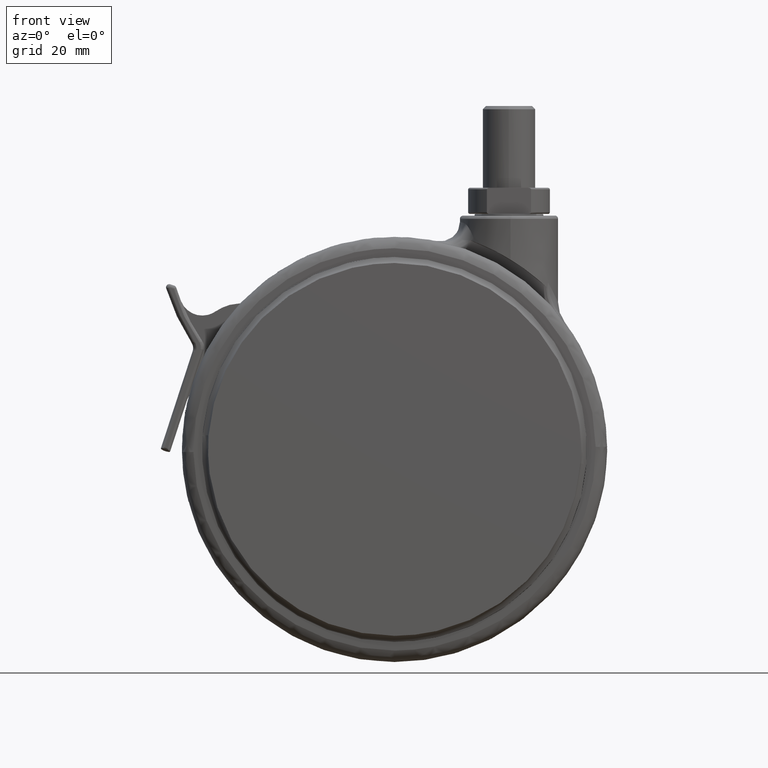
[diagram: clean part render]
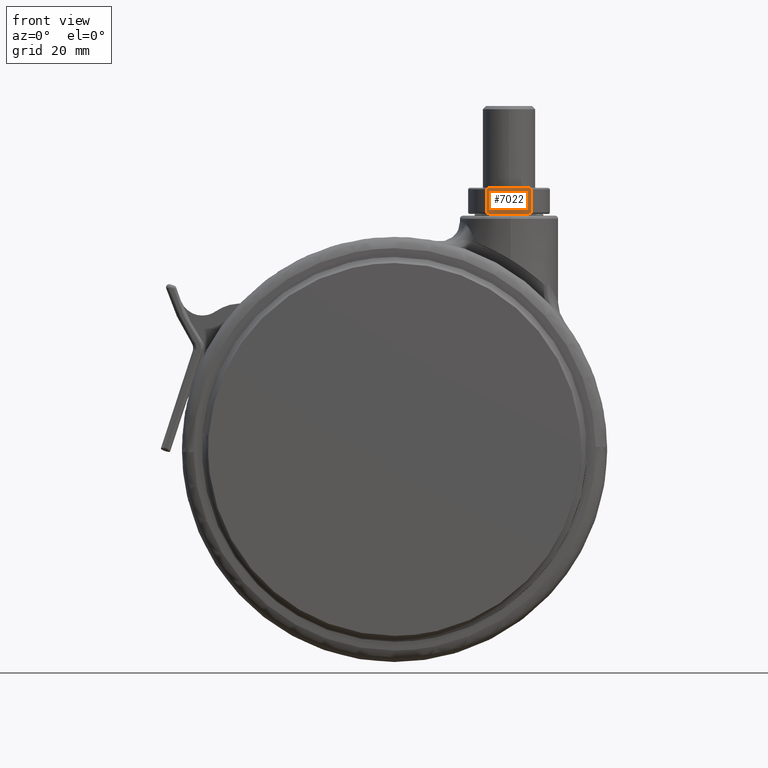
[diagram: same view with one face highlighted and labeled with its STEP entity id]
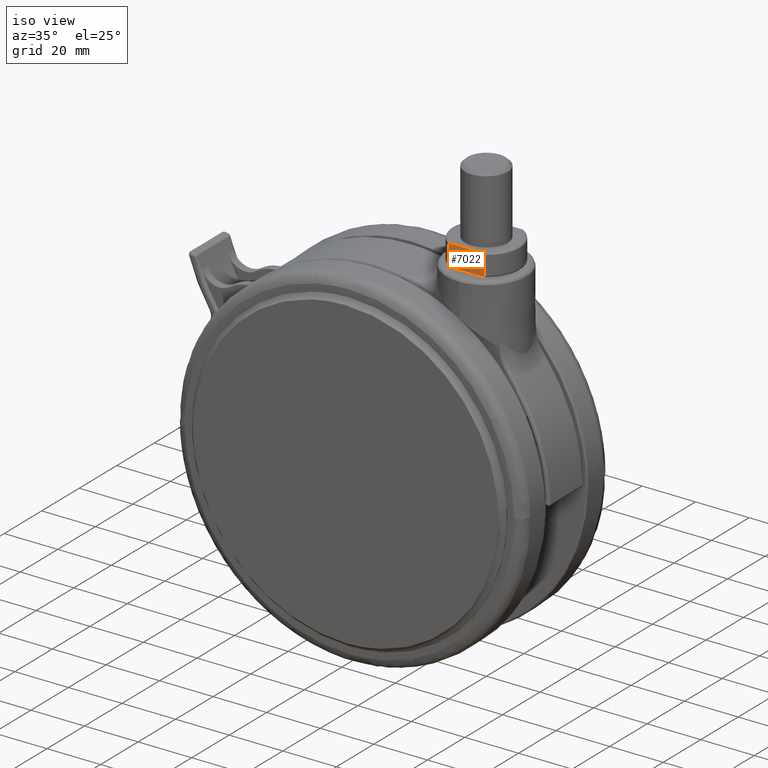
[diagram: same view with one face highlighted and labeled with its STEP entity id]
A machine part, front view. The second image highlights one B-rep face of the part: STEP entity #7022.
A second angle (iso view) of the same face is appended — the face is thin or edge-on in the first view.
In plain terms, the highlighted face is a freeform B-spline surface patch.
Its self-contained STEP definition (entity closure, byte-faithful):
#6467=CARTESIAN_POINT('',(6.782329983125040,-10.500000000000000,8.000000000000449));
#6468=VERTEX_POINT('',#6467);
#6469=CARTESIAN_POINT('',(5.809475019310709,-10.500000000000000,8.500000000000000));
#6470=VERTEX_POINT('',#6469);
#6471=CARTESIAN_POINT('',(6.782329983125040,-10.500000000000000,8.000000000000449));
#6472=CARTESIAN_POINT('',(6.782329983125398,-10.500000000000000,8.025006084478010));
#6473=CARTESIAN_POINT('',(6.778894872954105,-10.500000000000000,8.049620599874512));
#6474=CARTESIAN_POINT('',(6.765532232701906,-10.500000000000000,8.098109558072801));
#6475=CARTESIAN_POINT('',(6.755800013988131,-10.500000000000000,8.121219364959234));
#6476=CARTESIAN_POINT('',(6.731602518106492,-10.500000000000000,8.164995240246698));
#6477=CARTESIAN_POINT('',(6.717086997669903,-10.500000000000000,8.185683152687926));
#6478=CARTESIAN_POINT('',(6.685274213978498,-10.500000000000000,8.223812793039759));
#6479=CARTESIAN_POINT('',(6.667844124028011,-10.500000000000000,8.241488407830167));
#6480=CARTESIAN_POINT('',(6.630539739280456,-10.500000000000000,8.274611175929335));
#6481=CARTESIAN_POINT('',(6.610669501344757,-10.500000000000000,8.290017918503461));
#6482=CARTESIAN_POINT('',(6.569880388870889,-10.500000000000000,8.318308946690188));
#6483=CARTESIAN_POINT('',(6.548832347630271,-10.500000000000000,8.331306606816419));
#6484=CARTESIAN_POINT('',(6.484087600165488,-10.500000000000000,8.367488073077922));
#6485=CARTESIAN_POINT('',(6.438574857289725,-10.500000000000000,8.387978068794688));
#6486=CARTESIAN_POINT('',(6.298860745540612,-10.500000000000000,8.440404315467633));
#6487=CARTESIAN_POINT('',(6.203070432816213,-10.500000000000000,8.463199482328554));
#6488=CARTESIAN_POINT('',(6.008083283711581,-10.500000000000000,8.493149612594985));
#6489=CARTESIAN_POINT('',(5.908495741289564,-10.500000000000000,8.500000000000028));
#6490=CARTESIAN_POINT('',(5.809475019310709,-10.500000000000000,8.500000000000000));
#6491=B_SPLINE_CURVE_WITH_KNOTS('',3,(#6471,#6472,#6473,#6474,#6475,#6476,#6477,#6478,#6479,#6480,#6481,#6482,#6483,#6484,#6485,#6486,#6487,#6488,#6489,#6490),.UNSPECIFIED.,.F.,.U.,(4,2,2,2,2,2,2,2,2,4),(0.0,0.062500000000000,0.125000000000000,0.187500000000000,0.250000000000000,0.312499999999999,0.374999999999999,0.499999999999999,0.749999999999999,1.0),.UNSPECIFIED.);
#6492=EDGE_CURVE('',#6468,#6470,#6491,.T.);
#6573=CARTESIAN_POINT('',(-6.782329983125500,-10.500000000000000,1.0));
#6574=VERTEX_POINT('',#6573);
#6575=CARTESIAN_POINT('',(-6.782329983125500,-10.500000000000000,8.0));
#6576=VERTEX_POINT('',#6575);
#6577=CARTESIAN_POINT('',(-6.782329983125500,-10.500000000000000,1.0));
#6578=CARTESIAN_POINT('',(-6.782329983125500,-10.500000000000000,8.0));
#6579=QUASI_UNIFORM_CURVE('',1,(#6577,#6578),.UNSPECIFIED.,.F.,.U.);
#6580=EDGE_CURVE('',#6574,#6576,#6579,.T.);
#6650=CARTESIAN_POINT('',(5.809475019311360,-10.500000000000000,0.500000000000000));
#6651=VERTEX_POINT('',#6650);
#6652=CARTESIAN_POINT('',(6.782329983125040,-10.500000000000000,1.0));
#6653=VERTEX_POINT('',#6652);
#6654=CARTESIAN_POINT('',(5.809475019311360,-10.500000000000000,0.500000000000000));
#6655=CARTESIAN_POINT('',(5.907808214370628,-10.500000000000000,0.500000000000002));
#6656=CARTESIAN_POINT('',(6.005620893752281,-10.500000000000000,0.506635402789131));
#6657=CARTESIAN_POINT('',(6.151383298716297,-10.500000000000000,0.528783182746073));
#6658=CARTESIAN_POINT('',(6.199809404592039,-10.500000000000000,0.538222783889418));
#6659=CARTESIAN_POINT('',(6.296264401155237,-10.500000000000000,0.562165585375154));
#6660=CARTESIAN_POINT('',(6.344283677155392,-10.500000000000000,0.576703230119387));
#6661=CARTESIAN_POINT('',(6.437183978473475,-10.500000000000000,0.611438650710822));
#6662=CARTESIAN_POINT('',(6.482370517535553,-10.500000000000000,0.631665015197731));
#6663=CARTESIAN_POINT('',(6.569259503009010,-10.500000000000000,0.679999767478652));
#6664=CARTESIAN_POINT('',(6.611227089595603,-10.500000000000000,0.708333227356670));
#6665=CARTESIAN_POINT('',(6.667309936975078,-10.500000000000000,0.757992237890141));
#6666=CARTESIAN_POINT('',(6.685067798463784,-10.500000000000000,0.775949955267131));
#6667=CARTESIAN_POINT('',(6.717145738613914,-10.500000000000000,0.814377148291070));
#6668=CARTESIAN_POINT('',(6.731385947461577,-10.500000000000000,0.834699031240981));
#6669=CARTESIAN_POINT('',(6.749434152023828,-10.500000000000000,0.867222574082232));
#6670=CARTESIAN_POINT('',(6.754894916359388,-10.500000000000000,0.878405899233103));
#6671=CARTESIAN_POINT('',(6.764542299206954,-10.500000000000000,0.901557600110035));
#6672=CARTESIAN_POINT('',(6.768732790621547,-10.500000000000000,0.913583063945968));
#6673=CARTESIAN_POINT('',(6.778792855181404,-10.500000000000000,0.949856086522804));
#6674=CARTESIAN_POINT('',(6.782329983125439,-10.500000000000000,0.974679315020964));
#6675=CARTESIAN_POINT('',(6.782329983125432,-10.500000000000000,1.000000000000064));
#6676=B_SPLINE_CURVE_WITH_KNOTS('',3,(#6654,#6655,#6656,#6657,#6658,#6659,#6660,#6661,#6662,#6663,#6664,#6665,#6666,#6667,#6668,#6669,#6670,#6671,#6672,#6673,#6674,#6675),.UNSPECIFIED.,.F.,.U.,(4,2,2,2,2,2,2,2,2,2,4),(0.0,0.250000000000000,0.375000000000000,0.500000000000000,0.625000000000000,0.750000000000000,0.812500000000000,0.875000000000000,0.906250000000000,0.937500000000000,1.0),.UNSPECIFIED.);
#6677=EDGE_CURVE('',#6651,#6653,#6676,.T.);
#6766=CARTESIAN_POINT('',(-5.809475019310820,-10.500000000000000,8.500000000000000));
#6767=VERTEX_POINT('',#6766);
#6768=CARTESIAN_POINT('',(-5.809475019310820,-10.500000000000000,8.500000000000000));
#6769=CARTESIAN_POINT('',(-5.908824516433634,-10.500000000000000,8.500000000000030));
#6770=CARTESIAN_POINT('',(-6.007364808222510,-10.500000000000000,8.493210699856416));
#6771=CARTESIAN_POINT('',(-6.153415350954165,-10.500000000000000,8.470850845529034));
#6772=CARTESIAN_POINT('',(-6.201817245442609,-10.500000000000000,8.461343814179596));
#6773=CARTESIAN_POINT('',(-6.297938371994836,-10.500000000000000,8.437351352101606));
#6774=CARTESIAN_POINT('',(-6.345849222432587,-10.500000000000000,8.422780543385432));
#6775=CARTESIAN_POINT('',(-6.438491523914759,-10.500000000000000,8.388001151109304));
#6776=CARTESIAN_POINT('',(-6.483466834456741,-10.500000000000000,8.367785462778050));
#6777=CARTESIAN_POINT('',(-6.548182807469635,-10.500000000000000,8.331693801038950));
#6778=CARTESIAN_POINT('',(-6.569292498317113,-10.500000000000000,8.318692510306667));
#6779=CARTESIAN_POINT('',(-6.610354644187559,-10.500000000000000,8.290259967686303));
#6780=CARTESIAN_POINT('',(-6.630238755966435,-10.500000000000000,8.274852793760084));
#6781=CARTESIAN_POINT('',(-6.667503778221622,-10.500000000000000,8.241815792145850));
#6782=CARTESIAN_POINT('',(-6.685006799877059,-10.500000000000000,8.224116200149434));
#6783=CARTESIAN_POINT('',(-6.717105990929324,-10.500000000000000,8.185677361803133));
#6784=CARTESIAN_POINT('',(-6.731564047204559,-10.500000000000000,8.165036764883938));
#6785=CARTESIAN_POINT('',(-6.749630878642103,-10.500000000000000,8.132393870228050));
#6786=CARTESIAN_POINT('',(-6.755078832454545,-10.500000000000000,8.121194494291826));
#6787=CARTESIAN_POINT('',(-6.764676906786790,-10.500000000000011,8.098076209642990));
#6788=CARTESIAN_POINT('',(-6.768834911194334,-10.500000000000000,8.086095652803383));
#6789=CARTESIAN_POINT('',(-6.778825908003184,-10.500000000000000,8.049929193512746));
#6790=CARTESIAN_POINT('',(-6.782329983125547,-10.500000000000000,8.025257030679537));
#6791=CARTESIAN_POINT('',(-6.782329983125547,-10.500000000000000,7.999999999999991));
#6792=B_SPLINE_CURVE_WITH_KNOTS('',3,(#6768,#6769,#6770,#6771,#6772,#6773,#6774,#6775,#6776,#6777,#6778,#6779,#6780,#6781,#6782,#6783,#6784,#6785,#6786,#6787,#6788,#6789,#6790,#6791),.UNSPECIFIED.,.F.,.U.,(4,2,2,2,2,2,2,2,2,2,2,4),(0.0,0.250000000000000,0.375000000000000,0.500000000000000,0.625000000000000,0.687500000000000,0.750000000000000,0.812500000000000,0.875000000000000,0.906250000000000,0.937500000000000,1.0),.UNSPECIFIED.);
#6793=EDGE_CURVE('',#6767,#6576,#6792,.T.);
#6860=CARTESIAN_POINT('',(6.782329983125040,-10.500000000000000,1.0));
#6861=CARTESIAN_POINT('',(6.782329983125040,-10.500000000000000,8.000000000000449));
#6862=QUASI_UNIFORM_CURVE('',1,(#6860,#6861),.UNSPECIFIED.,.F.,.U.);
#6863=EDGE_CURVE('',#6653,#6468,#6862,.T.);
#6898=CARTESIAN_POINT('',(-5.809475019311470,-10.500000000000000,0.500000000000000));
#6899=VERTEX_POINT('',#6898);
#6900=CARTESIAN_POINT('',(-6.782329983125500,-10.500000000000000,1.0));
#6901=CARTESIAN_POINT('',(-6.782329983125587,-10.500000000000000,0.975051003419284));
#6902=CARTESIAN_POINT('',(-6.778908243421517,-10.500000000000000,0.950417963263318));
#6903=CARTESIAN_POINT('',(-6.765502578672705,-10.500000000000000,0.901792802518420));
#6904=CARTESIAN_POINT('',(-6.755812724968300,-10.500000000000000,0.878802468660750));
#6905=CARTESIAN_POINT('',(-6.731582163753441,-10.500000000000000,0.834969098815146));
#6906=CARTESIAN_POINT('',(-6.717095576788148,-10.500000000000000,0.814328993303794));
#6907=CARTESIAN_POINT('',(-6.685293009230842,-10.500000000000000,0.776207872491481));
#6908=CARTESIAN_POINT('',(-6.667849691004725,-10.500000000000000,0.758514144586176));
#6909=CARTESIAN_POINT('',(-6.630474053674725,-10.500000000000000,0.725332895841803));
#6910=CARTESIAN_POINT('',(-6.610522916064419,-10.500000000000000,0.709867126838939));
#6911=CARTESIAN_POINT('',(-6.569522317284925,-10.500000000000000,0.681456146248903));
#6912=CARTESIAN_POINT('',(-6.548406827879954,-10.500000000000000,0.668438243134346));
#6913=CARTESIAN_POINT('',(-6.483571462820831,-10.500000000000000,0.632258759251883));
#6914=CARTESIAN_POINT('',(-6.438381237499405,-10.500000000000000,0.611935599739927));
#6915=CARTESIAN_POINT('',(-6.345069136232842,-10.500000000000000,0.576948655237989));
#6916=CARTESIAN_POINT('',(-6.297568288055468,-10.500000000000000,0.562551416970403));
#6917=CARTESIAN_POINT('',(-6.201916297474449,-10.500000000000000,0.538685779189373));
#6918=CARTESIAN_POINT('',(-6.153641077571768,-10.500000000000000,0.529191225193798));
#6919=CARTESIAN_POINT('',(-6.056339390967790,-10.500000000000000,0.514279673611782));
#6920=CARTESIAN_POINT('',(-6.007311637624163,-10.500000000000000,0.508869659558194));
#6921=CARTESIAN_POINT('',(-5.908579668729151,-10.500000000000000,0.501721278126723));
#6922=CARTESIAN_POINT('',(-5.858825068217607,-10.500000000000000,0.499999999999994));
#6923=CARTESIAN_POINT('',(-5.809475019311469,-10.500000000000000,0.499999999999994));
#6924=B_SPLINE_CURVE_WITH_KNOTS('',3,(#6900,#6901,#6902,#6903,#6904,#6905,#6906,#6907,#6908,#6909,#6910,#6911,#6912,#6913,#6914,#6915,#6916,#6917,#6918,#6919,#6920,#6921,#6922,#6923),.UNSPECIFIED.,.F.,.U.,(4,2,2,2,2,2,2,2,2,2,2,4),(0.0,0.062499999999999,0.124999999999999,0.187499999999998,0.249999999999998,0.312499999999997,0.374999999999996,0.499999999999997,0.624999999999998,0.749999999999998,0.874999999999999,1.0),.UNSPECIFIED.);
#6925=EDGE_CURVE('',#6574,#6899,#6924,.T.);
#6982=CARTESIAN_POINT('',(5.809475019310709,-10.500000000000000,8.500000000000000));
#6983=CARTESIAN_POINT('',(-5.809475019310820,-10.500000000000000,8.500000000000000));
#6984=QUASI_UNIFORM_CURVE('',1,(#6982,#6983),.UNSPECIFIED.,.F.,.U.);
#6985=EDGE_CURVE('',#6470,#6767,#6984,.T.);
#7003=CARTESIAN_POINT('',(-7.459884722148771,-10.500000000000000,0.100400015505552));
#7004=CARTESIAN_POINT('',(-7.459884722148771,-10.500000000000000,8.899600199071170));
#7005=CARTESIAN_POINT('',(7.459885085980845,-10.500000000000000,0.100400015505552));
#7006=CARTESIAN_POINT('',(7.459885085980845,-10.500000000000000,8.899600199071170));
#7007=B_SPLINE_SURFACE_WITH_KNOTS('',1,1,((#7003,#7005),(#7004,#7006)),.UNSPECIFIED.,.F.,.F.,.U.,(2,2),(2,2),(0.0,8.799200183565617),(0.0,14.919769808129621),.UNSPECIFIED.);
#7008=ORIENTED_EDGE('',*,*,#6925,.T.);
#7009=CARTESIAN_POINT('',(5.809475019311360,-10.500000000000000,0.500000000000000));
#7010=CARTESIAN_POINT('',(-5.809475019311470,-10.500000000000000,0.500000000000000));
#7011=QUASI_UNIFORM_CURVE('',1,(#7009,#7010),.UNSPECIFIED.,.F.,.U.);
#7012=EDGE_CURVE('',#6651,#6899,#7011,.T.);
#7013=ORIENTED_EDGE('',*,*,#7012,.F.);
#7014=ORIENTED_EDGE('',*,*,#6677,.T.);
#7015=ORIENTED_EDGE('',*,*,#6863,.T.);
#7016=ORIENTED_EDGE('',*,*,#6492,.T.);
#7017=ORIENTED_EDGE('',*,*,#6985,.T.);
#7018=ORIENTED_EDGE('',*,*,#6793,.T.);
#7019=ORIENTED_EDGE('',*,*,#6580,.F.);
#7020=EDGE_LOOP('',(#7008,#7013,#7014,#7015,#7016,#7017,#7018,#7019));
#7021=FACE_OUTER_BOUND('',#7020,.T.);
#7022=ADVANCED_FACE('',(#7021),#7007,.F.);